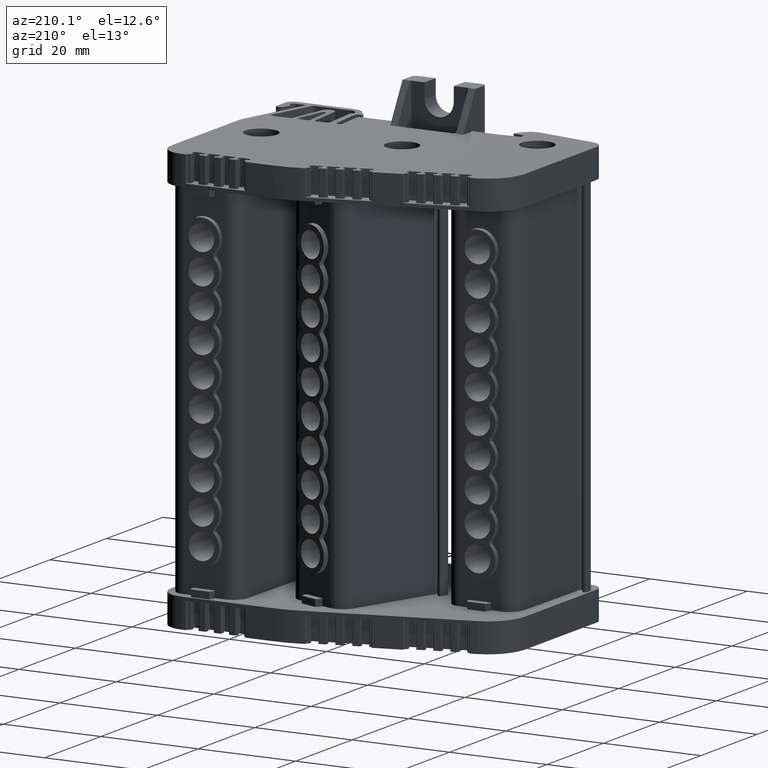
[diagram: clean part render]
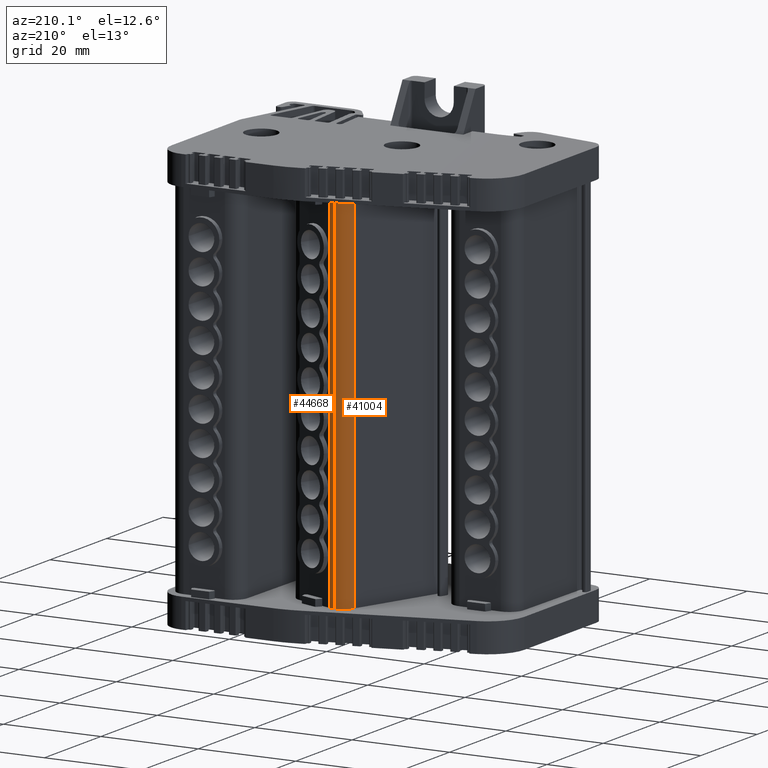
[diagram: same view with one multi-face feature highlighted, each face labeled with its STEP entity id]
A machine part, auxiliary view. The highlighted faces form ONE feature: a constant-radius fillet chain: 2 tangent blend faces with common blend radius 3.0101 mm. The faces share edges in the B-rep.
Their STEP definitions:
[1] entity #44668 (Cylinder):
#5400 = CIRCLE ( 'NONE', #5449, 3.010083036540351000 ) ;
#5449 = AXIS2_PLACEMENT_3D ( 'NONE', #13233, #13258, #13291 ) ;
#5505 = VECTOR ( 'NONE', #13341, 1000.000000000000000 ) ;
#13233 = CARTESIAN_POINT ( 'NONE',  ( -298.4317294013440600, 225.9803833806985000, 25.71293318655229500 ) ) ;
#13258 = DIRECTION ( 'NONE',  ( 8.166714072959356300E-015, -9.405853051772095400E-015, 1.000000000000000000 ) ) ;
#13291 = DIRECTION ( 'NONE',  ( -5.532520255161441000E-014, 1.000000000000000000, 9.220867091935734500E-015 ) ) ;
#13341 = DIRECTION ( 'NONE',  ( -2.067656873799533900E-015, -5.680858257042341300E-015, 1.000000000000000000 ) ) ;
#13355 = CARTESIAN_POINT ( 'NONE',  ( -298.4317294013434300, 225.9803833806978200, 100.3119239351455400 ) ) ;
#13387 = LINE ( 'NONE', #13412, #5505 ) ;
#13412 = CARTESIAN_POINT ( 'NONE',  ( -297.4022231998237700, 228.8089372281431200, 176.6548958728828000 ) ) ;
#13417 = DIRECTION ( 'NONE',  ( -8.166714072959356300E-015, 9.405853051772095400E-015, -1.000000000000000000 ) ) ;
#13498 = CIRCLE ( 'NONE', #13592, 3.010083036540351000 ) ;
#13521 = DIRECTION ( 'NONE',  ( 0.0000000000000000000, 1.000000000000000000, 9.220867091935734500E-015 ) ) ;
#13592 = AXIS2_PLACEMENT_3D ( 'NONE', #13355, #13417, #13521 ) ;
#27767 = AXIS2_PLACEMENT_3D ( 'NONE', #71498, #71574, #71500 ) ;
#32108 = VECTOR ( 'NONE', #82634, 1000.000000000000000 ) ;
#40302 = EDGE_CURVE ( 'NONE', #64789, #62027, #5400, .T. ) ;
#40322 = EDGE_CURVE ( 'NONE', #64789, #64699, #13387, .T. ) ;
#40327 = EDGE_CURVE ( 'NONE', #61992, #64699, #13498, .T. ) ;
#44668 = ADVANCED_FACE ( 'NONE', ( #73819 ), #71604, .T. ) ;
#52764 = EDGE_LOOP ( 'NONE', ( #65224, #65270, #65241, #65201 ) ) ;
#59722 = EDGE_CURVE ( 'NONE', #61992, #62027, #82667, .T. ) ;
#61992 = VERTEX_POINT ( 'NONE', #109981 ) ;
#62027 = VERTEX_POINT ( 'NONE', #110099 ) ;
#64699 = VERTEX_POINT ( 'NONE', #110560 ) ;
#64789 = VERTEX_POINT ( 'NONE', #110640 ) ;
#65201 = ORIENTED_EDGE ( 'NONE', *, *, #40302, .T. ) ;
#65224 = ORIENTED_EDGE ( 'NONE', *, *, #59722, .F. ) ;
#65241 = ORIENTED_EDGE ( 'NONE', *, *, #40322, .F. ) ;
#65270 = ORIENTED_EDGE ( 'NONE', *, *, #40327, .T. ) ;
#71498 = CARTESIAN_POINT ( 'NONE',  ( -298.4317294013428100, 225.9803833806971100, 176.6548958728828600 ) ) ;
#71500 = DIRECTION ( 'NONE',  ( 0.0000000000000000000, 1.000000000000000000, 9.220867091935734500E-015 ) ) ;
#71574 = DIRECTION ( 'NONE',  ( -8.166714072959356300E-015, 9.405853051772095400E-015, -1.000000000000000000 ) ) ;
#71604 = CYLINDRICAL_SURFACE ( 'NONE', #27767, 3.010083036540351000 ) ;
#73819 = FACE_OUTER_BOUND ( 'NONE', #52764, .T. ) ;
#82634 = DIRECTION ( 'NONE',  ( -8.166714072959356300E-015, 9.405853051772095400E-015, -1.000000000000000000 ) ) ;
#82648 = CARTESIAN_POINT ( 'NONE',  ( -298.4317294013428100, 228.9904664172374600, 176.6548958728828900 ) ) ;
#82667 = LINE ( 'NONE', #82648, #32108 ) ;
#109981 = CARTESIAN_POINT ( 'NONE',  ( -298.4317294013437700, 228.9904664172381700, 100.3119239351455700 ) ) ;
#110099 = CARTESIAN_POINT ( 'NONE',  ( -298.4317294013437700, 228.9904664172388500, 25.71293318655232300 ) ) ;
#110560 = CARTESIAN_POINT ( 'NONE',  ( -297.4022231998233700, 228.8089372281434900, 100.3119239351455400 ) ) ;
#110640 = CARTESIAN_POINT ( 'NONE',  ( -297.4022231998236000, 228.8089372281440600, 25.71293318655235900 ) ) ;
[2] entity #41004 (Cylinder):
#7173 = EDGE_LOOP ( 'NONE', ( #62600, #62586, #62568, #62588 ) ) ;
#13019 = AXIS2_PLACEMENT_3D ( 'NONE', #22847, #22830, #22854 ) ;
#22824 = CYLINDRICAL_SURFACE ( 'NONE', #13019, 3.010083036540351000 ) ;
#22830 = DIRECTION ( 'NONE',  ( -8.166714072959356300E-015, 9.405853051772095400E-015, -1.000000000000000000 ) ) ;
#22835 = FACE_OUTER_BOUND ( 'NONE', #7173, .T. ) ;
#22847 = CARTESIAN_POINT ( 'NONE',  ( -298.4317294013428100, 225.9803833806971100, 176.6548958728828600 ) ) ;
#22854 = DIRECTION ( 'NONE',  ( 0.0000000000000000000, 1.000000000000000000, 9.220867091935734500E-015 ) ) ;
#32059 = CIRCLE ( 'NONE', #32060, 3.010083036540351000 ) ;
#32060 = AXIS2_PLACEMENT_3D ( 'NONE', #84012, #83994, #84014 ) ;
#32087 = AXIS2_PLACEMENT_3D ( 'NONE', #82708, #82702, #82703 ) ;
#32108 = VECTOR ( 'NONE', #82634, 1000.000000000000000 ) ;
#32110 = CIRCLE ( 'NONE', #32087, 3.010083036540351000 ) ;
#32128 = VECTOR ( 'NONE', #82588, 1000.000000000000000 ) ;
#41004 = ADVANCED_FACE ( 'NONE', ( #22835 ), #22824, .T. ) ;
#59680 = EDGE_CURVE ( 'NONE', #62039, #61992, #32059, .T. ) ;
#59705 = EDGE_CURVE ( 'NONE', #62039, #62051, #82596, .T. ) ;
#59722 = EDGE_CURVE ( 'NONE', #61992, #62027, #82667, .T. ) ;
#59727 = EDGE_CURVE ( 'NONE', #62027, #62051, #32110, .T. ) ;
#61992 = VERTEX_POINT ( 'NONE', #109981 ) ;
#62027 = VERTEX_POINT ( 'NONE', #110099 ) ;
#62039 = VERTEX_POINT ( 'NONE', #110051 ) ;
#62051 = VERTEX_POINT ( 'NONE', #110050 ) ;
#62568 = ORIENTED_EDGE ( 'NONE', *, *, #59727, .T. ) ;
#62586 = ORIENTED_EDGE ( 'NONE', *, *, #59722, .T. ) ;
#62588 = ORIENTED_EDGE ( 'NONE', *, *, #59705, .F. ) ;
#62600 = ORIENTED_EDGE ( 'NONE', *, *, #59680, .T. ) ;
#82588 = DIRECTION ( 'NONE',  ( -1.026475324051172400E-014, 3.940257814039981000E-015, -1.000000000000000000 ) ) ;
#82595 = CARTESIAN_POINT ( 'NONE',  ( -301.2801622102116400, 226.9535382605734200, 176.6548958728825800 ) ) ;
#82596 = LINE ( 'NONE', #82595, #32128 ) ;
#82634 = DIRECTION ( 'NONE',  ( -8.166714072959356300E-015, 9.405853051772095400E-015, -1.000000000000000000 ) ) ;
#82648 = CARTESIAN_POINT ( 'NONE',  ( -298.4317294013428100, 228.9904664172374600, 176.6548958728828900 ) ) ;
#82667 = LINE ( 'NONE', #82648, #32108 ) ;
#82702 = DIRECTION ( 'NONE',  ( 8.166714072959356300E-015, -9.405853051772095400E-015, 1.000000000000000000 ) ) ;
#82703 = DIRECTION ( 'NONE',  ( 0.0000000000000000000, 1.000000000000000000, 9.220867091935734500E-015 ) ) ;
#82708 = CARTESIAN_POINT ( 'NONE',  ( -298.4317294013440600, 225.9803833806985000, 25.71293318655229500 ) ) ;
#83994 = DIRECTION ( 'NONE',  ( -8.166714072959356300E-015, 9.405853051772095400E-015, -1.000000000000000000 ) ) ;
#84012 = CARTESIAN_POINT ( 'NONE',  ( -298.4317294013434300, 225.9803833806978200, 100.3119239351455400 ) ) ;
#84014 = DIRECTION ( 'NONE',  ( 0.0000000000000000000, 1.000000000000000000, 9.220867091935734500E-015 ) ) ;
#109981 = CARTESIAN_POINT ( 'NONE',  ( -298.4317294013437700, 228.9904664172381700, 100.3119239351455700 ) ) ;
#110050 = CARTESIAN_POINT ( 'NONE',  ( -301.2801622102133500, 226.9535382605736200, 25.71293318655231300 ) ) ;
#110051 = CARTESIAN_POINT ( 'NONE',  ( -301.2801622102127200, 226.9535382605730800, 100.3119239351456600 ) ) ;
#110099 = CARTESIAN_POINT ( 'NONE',  ( -298.4317294013437700, 228.9904664172388500, 25.71293318655232300 ) ) ;